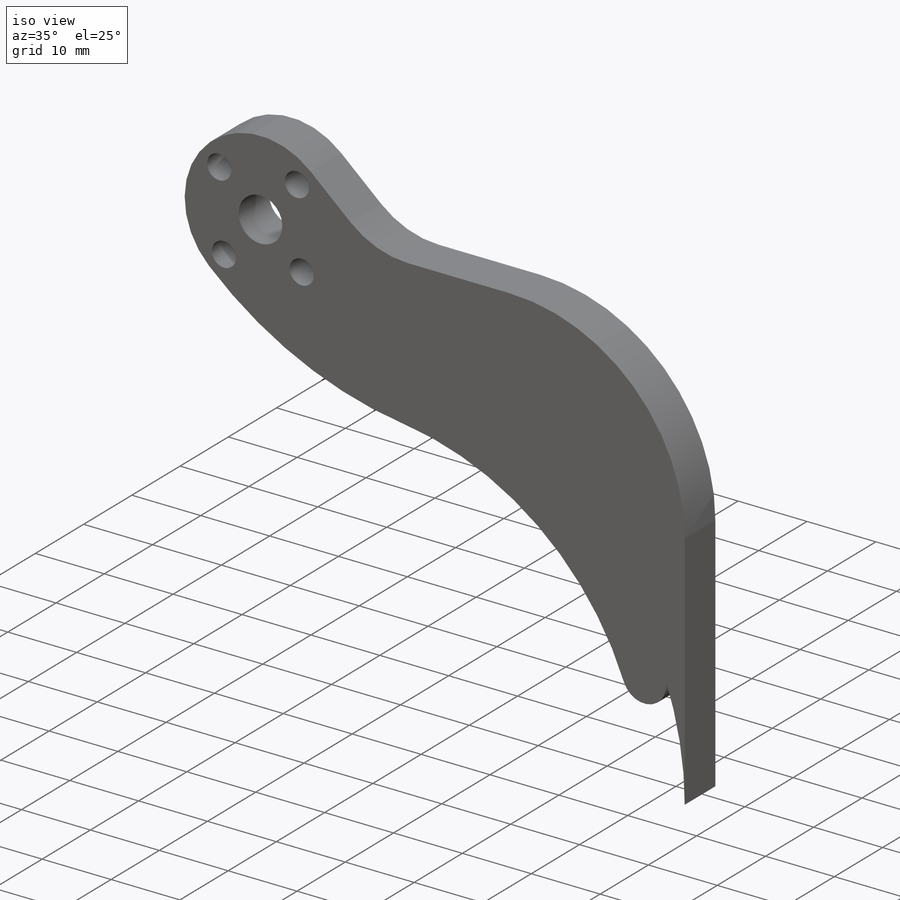
[diagram: iso view]
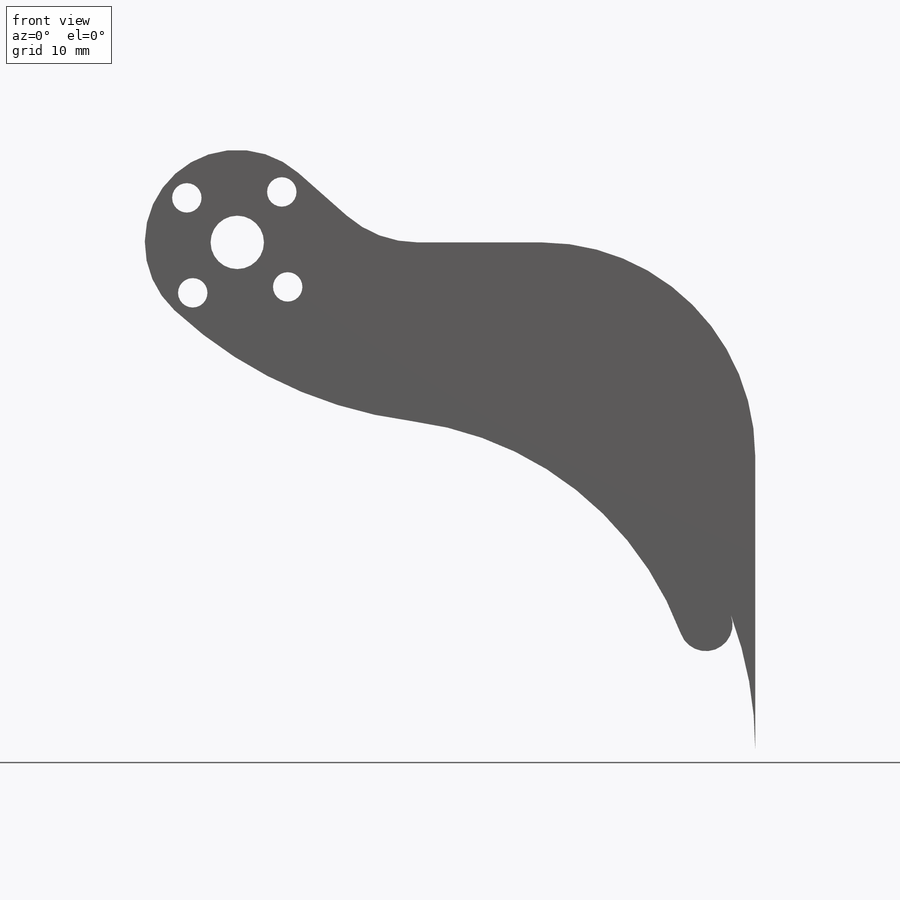
[diagram: front view]
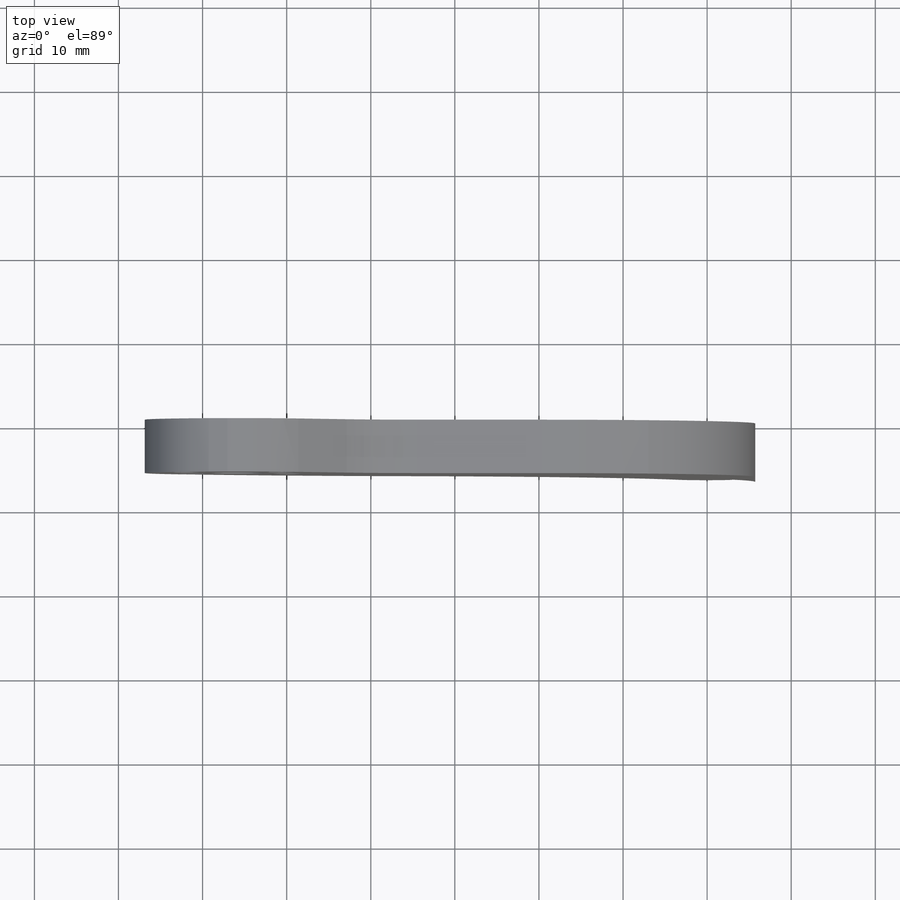
[diagram: top view]
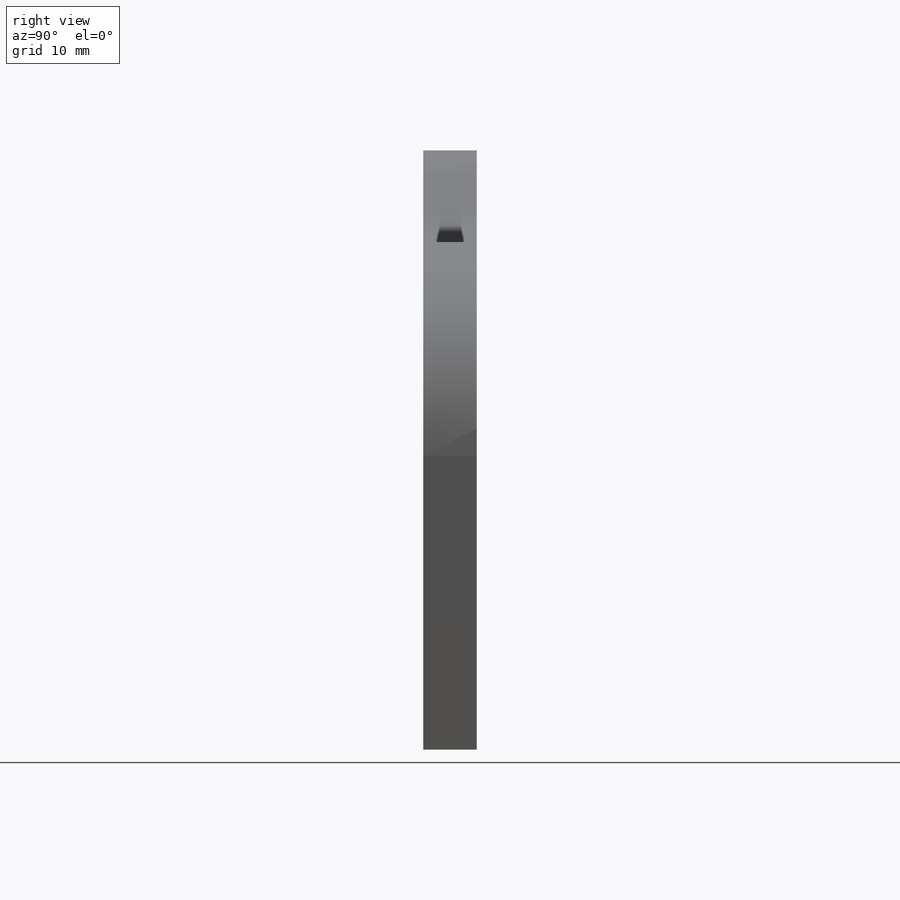
[diagram: right view]
SOLIDWORKS PART (.sldprt)
format: sldprt  version: not decoded by parser v0  size: 197,120 bytes
history: native  units: mm
features: sketch x3, extrude x2, fillet x2, material x1, cut_extrude x1 (+13 scaffold rows collapsed)
feature tree (22):
  scaffold x13  (default folders/planes/origin — collapsed)
  material  "Plain Carbon Steel"
  sketch  "Sketch1"  dims[c1.D3=107.95mm c1.D4=42.418mm c2.D3=11.0mm c2.D4=39.37mm c2.D5=~39.961115mm c2.D7=50.8mm c2.D8=207.1604mm c2.D1=25.4mm c2.D2=12.7mm c3.D3=~29.49961mm c3.D5=25.4mm c3.D6=35.56mm c3.D7=19.685mm c3.D8=34.925mm c3.D9=~49.989869mm c3.D10=~56.473877mm c4.D5=6.35mm c4.D8=12.7mm c4.D9=82.55mm c4.D10=101.6mm]
  extrude  "Boss-Extrude1"  Depth=6.35mm
  sketch  "Sketch2"  dims[D2=3.5mm D3=6.35mm D1=8.0mm D4=4.0]
  cut_extrude  "Cut-Extrude1"  [1 undecoded]
  sketch  "Sketch3"
  extrude  "Boss-Extrude2"  [1 undecoded]
  fillet  "Fillet1"  Radius=12.7mm
  fillet  "Fillet2"  Radius=25.4mm
decode coverage: 5 of 8 modeling features carry decoded parameters
note: ~ marks probable driven/reference dimensions
note: 2 parameter values undecoded
note: suppression state not decoded; provenance and decode notes live in map.json
